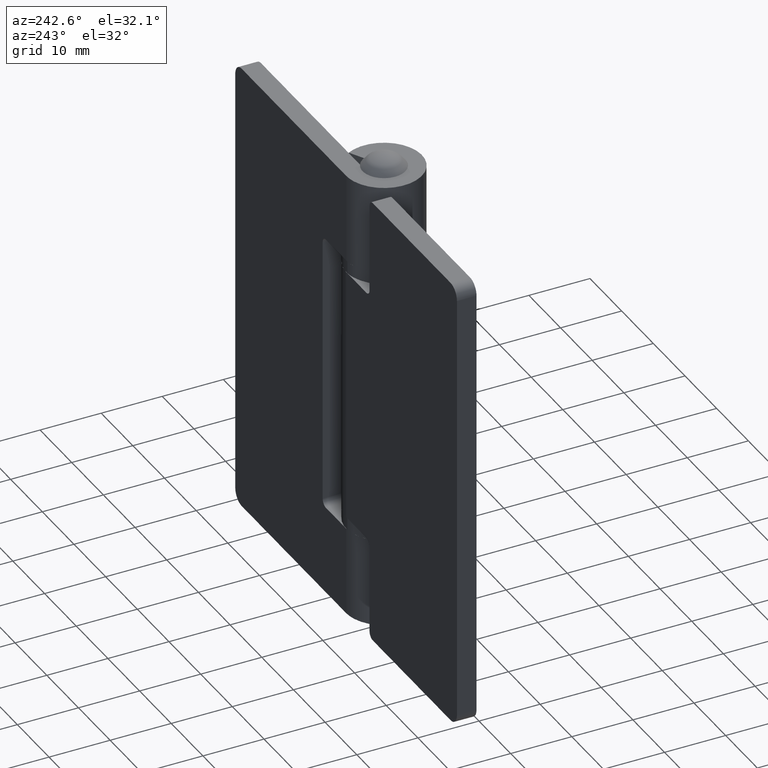
[diagram: clean part render]
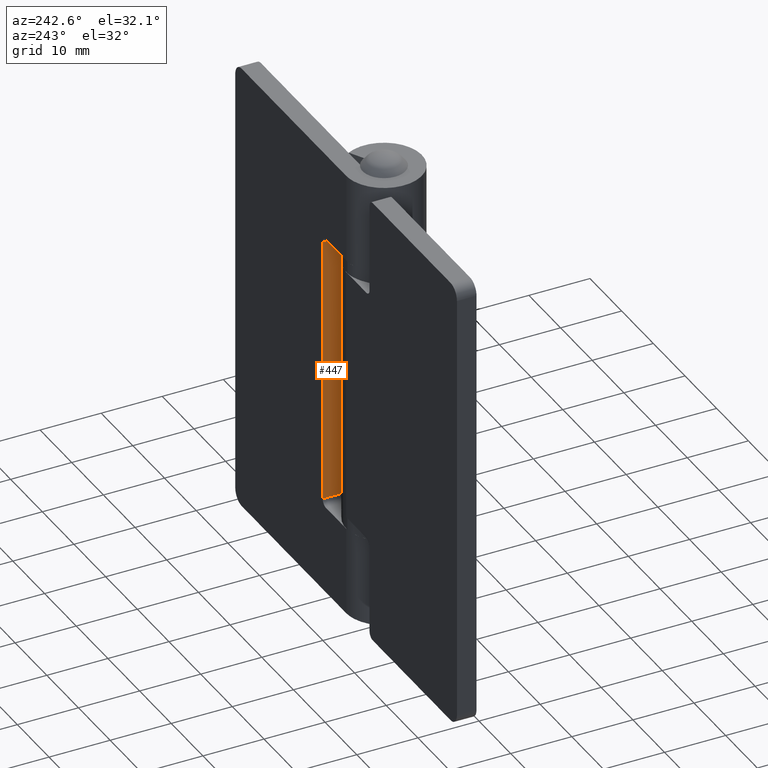
[diagram: same view with one face highlighted and labeled with its STEP entity id]
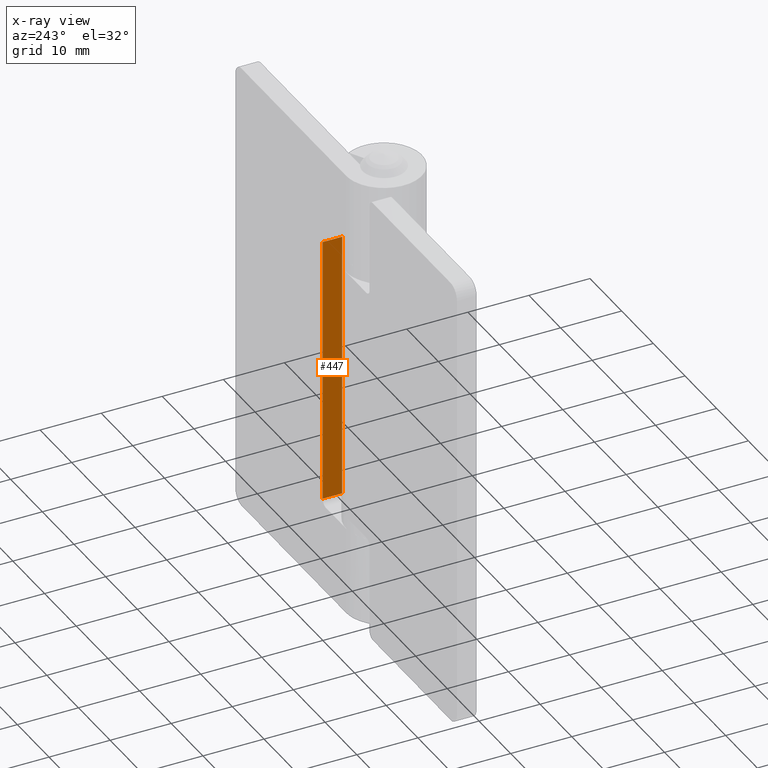
[diagram: x-ray of the same camera — body ghosted, the highlighted face saturated]
A machine part, auxiliary view. The second image highlights one B-rep face of the part: STEP entity #447.
The next image is the same camera in x-ray: the body ghosted, the highlighted face saturated — about 0% of this face is hidden behind the body in this view.
In plain terms, the highlighted face is a freeform B-spline surface patch.
Its self-contained STEP definition (entity closure, byte-faithful):
#60=CARTESIAN_POINT('',(7.400000999999900,3.0,59.500000000000000));
#61=VERTEX_POINT('',#60);
#82=CARTESIAN_POINT('',(7.400000999999900,6.200001000000000,59.500000000000000));
#83=VERTEX_POINT('',#82);
#97=CARTESIAN_POINT('',(7.400000999999900,3.0,59.500000000000000));
#98=CARTESIAN_POINT('',(7.400000999999900,6.200001000000000,59.500000000000000));
#99=QUASI_UNIFORM_CURVE('',1,(#97,#98),.UNSPECIFIED.,.F.,.U.);
#100=EDGE_CURVE('',#61,#83,#99,.T.);
#119=CARTESIAN_POINT('',(7.400000999999900,3.0,15.500000000000000));
#120=VERTEX_POINT('',#119);
#136=CARTESIAN_POINT('',(7.400000999999900,6.200001000000000,15.500000000000000));
#137=VERTEX_POINT('',#136);
#138=CARTESIAN_POINT('',(7.400000999999900,6.200001000000000,15.500000000000000));
#139=CARTESIAN_POINT('',(7.400000999999900,3.0,15.500000000000000));
#140=QUASI_UNIFORM_CURVE('',1,(#138,#139),.UNSPECIFIED.,.F.,.U.);
#141=EDGE_CURVE('',#137,#120,#140,.T.);
#428=CARTESIAN_POINT('',(7.400000999999900,2.840159967684873,61.697799914719468));
#429=CARTESIAN_POINT('',(7.400000999999900,2.840159967684873,13.302198905108570));
#430=CARTESIAN_POINT('',(7.400000999999900,6.359840889263935,61.697799914719468));
#431=CARTESIAN_POINT('',(7.400000999999900,6.359840889263935,13.302198905108570));
#432=B_SPLINE_SURFACE_WITH_KNOTS('',1,1,((#428,#430),(#429,#431)),.UNSPECIFIED.,.F.,.F.,.U.,(2,2),(2,2),(0.0,48.395601009610900),(0.0,3.519680921579061),.UNSPECIFIED.);
#433=CARTESIAN_POINT('',(7.400000999999900,6.200001000000000,59.500000000000000));
#434=CARTESIAN_POINT('',(7.400000999999900,6.200001000000000,15.500000000000000));
#435=QUASI_UNIFORM_CURVE('',1,(#433,#434),.UNSPECIFIED.,.F.,.U.);
#436=EDGE_CURVE('',#83,#137,#435,.T.);
#437=ORIENTED_EDGE('',*,*,#436,.T.);
#438=ORIENTED_EDGE('',*,*,#141,.T.);
#439=CARTESIAN_POINT('',(7.400000999999900,3.0,59.500000000000000));
#440=CARTESIAN_POINT('',(7.400000999999900,3.0,15.500000000000000));
#441=QUASI_UNIFORM_CURVE('',1,(#439,#440),.UNSPECIFIED.,.F.,.U.);
#442=EDGE_CURVE('',#61,#120,#441,.T.);
#443=ORIENTED_EDGE('',*,*,#442,.F.);
#444=ORIENTED_EDGE('',*,*,#100,.T.);
#445=EDGE_LOOP('',(#437,#438,#443,#444));
#446=FACE_OUTER_BOUND('',#445,.T.);
#447=ADVANCED_FACE('',(#446),#432,.F.);